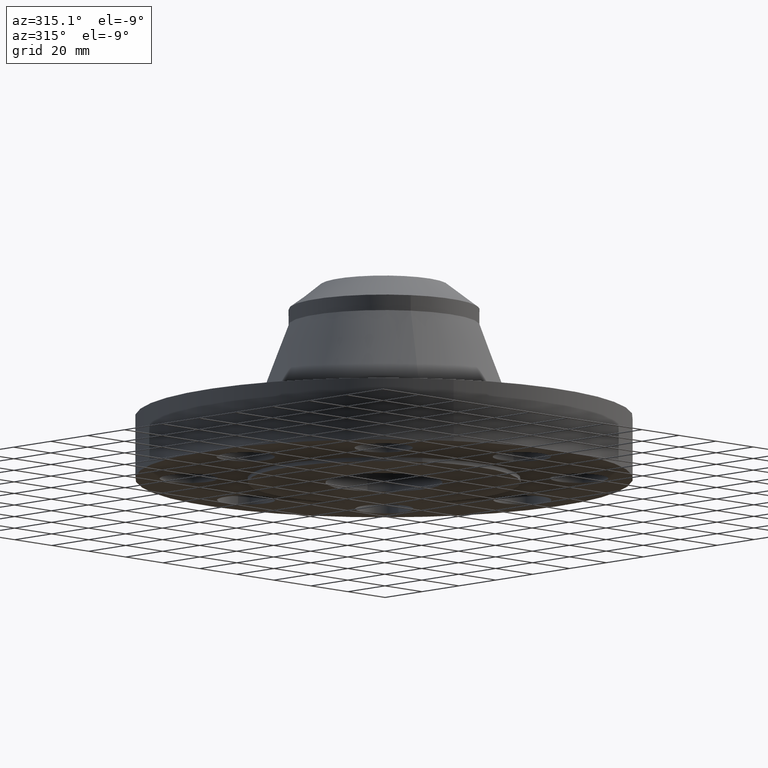
[diagram: clean part render]
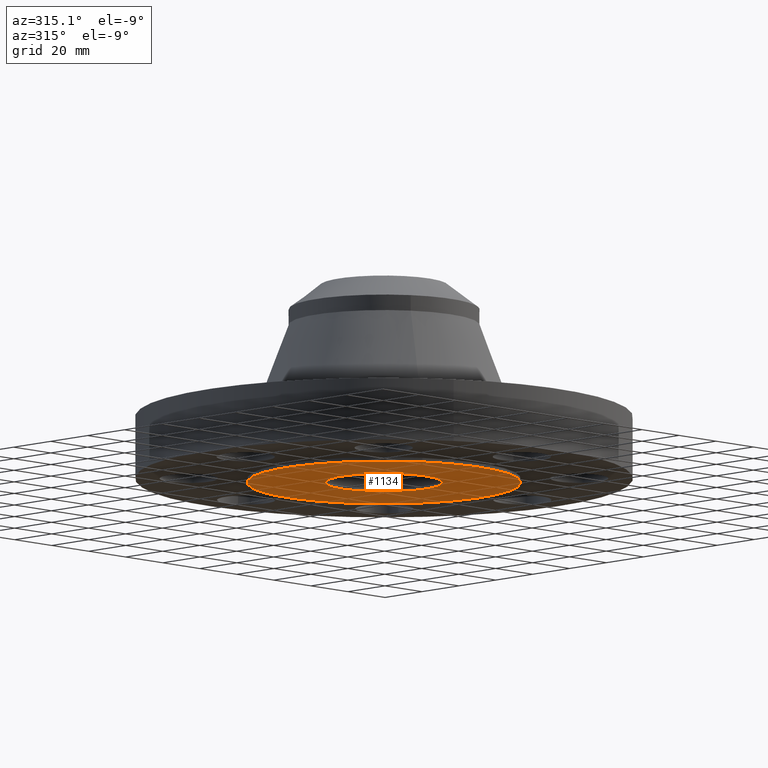
[diagram: same view with one face highlighted and labeled with its STEP entity id]
A machine part, auxiliary view. The second image highlights one B-rep face of the part: STEP entity #1134.
In plain terms, the highlighted planar face has unit normal (0, 0, -1).
Its self-contained STEP definition (entity closure, byte-faithful):
#617=AXIS2_PLACEMENT_3D('Circle Axis2P3D',#615,#616,$) ;
#1110=AXIS2_PLACEMENT_3D('Plane Axis2P3D',#1107,#1108,#1109) ;
#1118=AXIS2_PLACEMENT_3D('Circle Axis2P3D',#1116,#1117,$) ;
#1127=AXIS2_PLACEMENT_3D('Circle Axis2P3D',#1125,#1126,$) ;
#566=CARTESIAN_POINT('Control Point',(0.98761660953,1.8078200775,-0.0625000000152)) ;
#567=CARTESIAN_POINT('Control Point',(1.27158832326,1.65268562325,-0.0625000000145)) ;
#568=CARTESIAN_POINT('Control Point',(1.52509945812,1.44179345339,-0.0625000000137)) ;
#569=CARTESIAN_POINT('Control Point',(1.73350329742,1.1830735553,-0.062500000013)) ;
#570=CARTESIAN_POINT('Control Point',(2.03763777846,0.59785921109,-0.0625000000115)) ;
#571=CARTESIAN_POINT('Control Point',(2.09791009678,-0.0589062408546,-0.06250000001)) ;
#572=CARTESIAN_POINT('Control Point',(2.0623312704,-0.389212603218,-0.0625000000093)) ;
#573=CARTESIAN_POINT('Control Point',(1.86357779311,-1.01807718839,-0.0625000000078)) ;
#574=CARTESIAN_POINT('Control Point',(1.44179345339,-1.52509945812,-0.0625000000063)) ;
#575=CARTESIAN_POINT('Control Point',(1.1830735553,-1.73350329742,-0.0625000000056)) ;
#576=CARTESIAN_POINT('Control Point',(0.59785921109,-2.03763777846,-0.0625000000041)) ;
#577=CARTESIAN_POINT('Control Point',(-0.0589062408545,-2.09791009678,-0.0625000000026)) ;
#578=CARTESIAN_POINT('Control Point',(-0.389212603218,-2.0623312704,-0.0625000000019)) ;
#579=CARTESIAN_POINT('Control Point',(-0.703644895805,-1.96295453176,-0.0625000000011)) ;
#580=CARTESIAN_POINT('Control Point',(-0.98761660953,-1.8078200775,-0.0625000000004)) ;
#581=CARTESIAN_POINT('Vertex',(0.987616609562,1.80782007754,-0.0625000000003)) ;
#583=CARTESIAN_POINT('Vertex',(-0.987616609562,-1.80782007747,-0.0625000000003)) ;
#615=CARTESIAN_POINT('Axis2P3D Location',(0.,0.,-0.0625000000152)) ;
#1107=CARTESIAN_POINT('Axis2P3D Location',(0.,0.885500000004,-0.0625000000003)) ;
#1116=CARTESIAN_POINT('Axis2P3D Location',(-1.28117289306E-011,5.89526677693E-012,-0.0625000000003)) ;
#1120=CARTESIAN_POINT('Vertex',(0.424531314405,0.777099358584,-0.0625000000003)) ;
#1122=CARTESIAN_POINT('Vertex',(-0.424531314436,-0.777099358557,-0.0625000000152)) ;
#1125=CARTESIAN_POINT('Axis2P3D Location',(1.28117289306E-011,-8.10298460001E-012,-0.0625000000003)) ;
#616=DIRECTION('Axis2P3D Direction',(0.,0.,-0.0393700787402)) ;
#1108=DIRECTION('Axis2P3D Direction',(0.,0.,-0.0393700787402)) ;
#1109=DIRECTION('Axis2P3D XDirection',(0.0393700787402,0.,0.)) ;
#1117=DIRECTION('Axis2P3D Direction',(0.,0.,-0.0393700787402)) ;
#1126=DIRECTION('Axis2P3D Direction',(0.,0.,-0.0393700787402)) ;
#1113=ORIENTED_EDGE('',*,*,#619,.T.) ;
#1114=ORIENTED_EDGE('',*,*,#585,.T.) ;
#1131=ORIENTED_EDGE('',*,*,#1124,.F.) ;
#1132=ORIENTED_EDGE('',*,*,#1129,.F.) ;
#1133=FACE_BOUND('',#1130,.T.) ;
#1134=ADVANCED_FACE('PartBody',(#1115,#1133),#1111,.T.) ;
#565=B_SPLINE_CURVE_WITH_KNOTS('',5,(#566,#567,#568,#569,#570,#571,#572,#573,#574,#575,#576,#577,#578,#579,#580),.UNSPECIFIED.,.F.,.U.,(6,3,3,3,6),(-82.1903470036,-41.0951735018,0.,41.0951735018,82.1903470036),.UNSPECIFIED.) ;
#618=CIRCLE('generated circle',#617,2.06000000001) ;
#1119=CIRCLE('generated circle',#1118,0.885500000013) ;
#1128=CIRCLE('generated circle',#1127,0.885500000013) ;
#585=EDGE_CURVE('',#582,#584,#565,.T.) ;
#619=EDGE_CURVE('',#584,#582,#618,.T.) ;
#1124=EDGE_CURVE('',#1121,#1123,#1119,.T.) ;
#1129=EDGE_CURVE('',#1123,#1121,#1128,.T.) ;
#1112=EDGE_LOOP('',(#1113,#1114)) ;
#1130=EDGE_LOOP('',(#1131,#1132)) ;
#1115=FACE_OUTER_BOUND('',#1112,.T.) ;
#1111=PLANE('',#1110) ;
#582=VERTEX_POINT('',#581) ;
#584=VERTEX_POINT('',#583) ;
#1121=VERTEX_POINT('',#1120) ;
#1123=VERTEX_POINT('',#1122) ;